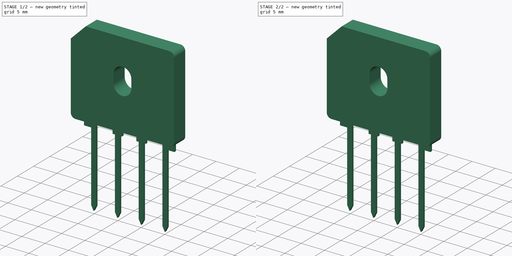
[diagram: build sequence overview — one tinted view per stage of 2, left to right]
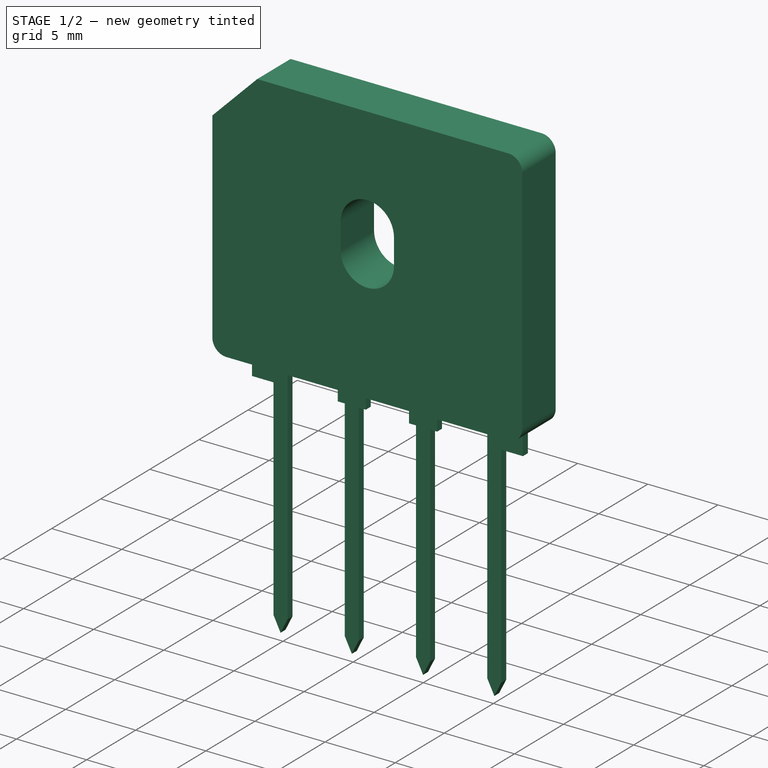
[diagram: stage 1 of 2 — iso view after this stage's code; geometry added in this stage tinted green]
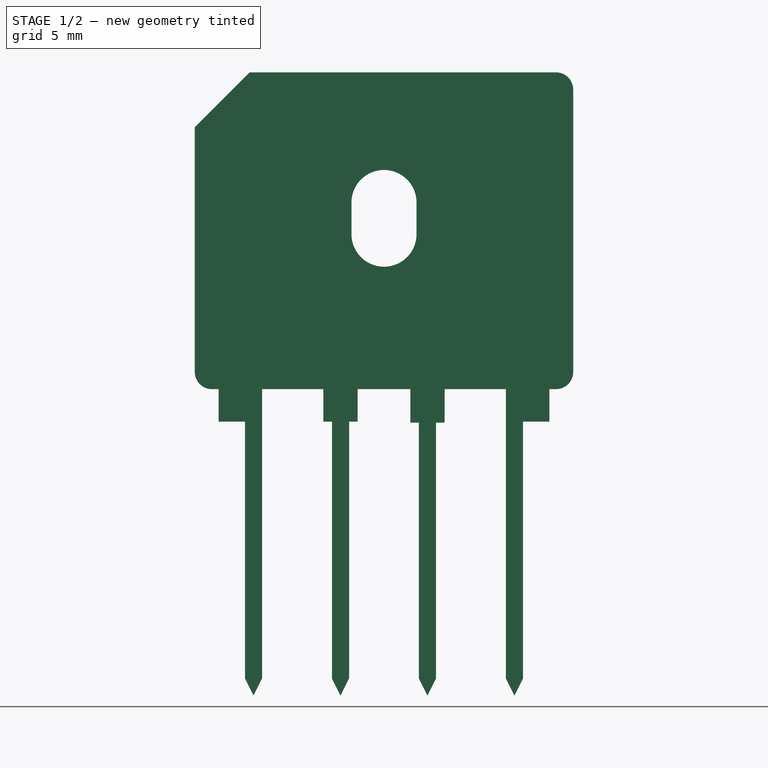
[diagram: stage 1 of 2 — front view after this stage's code; geometry added in this stage tinted green]
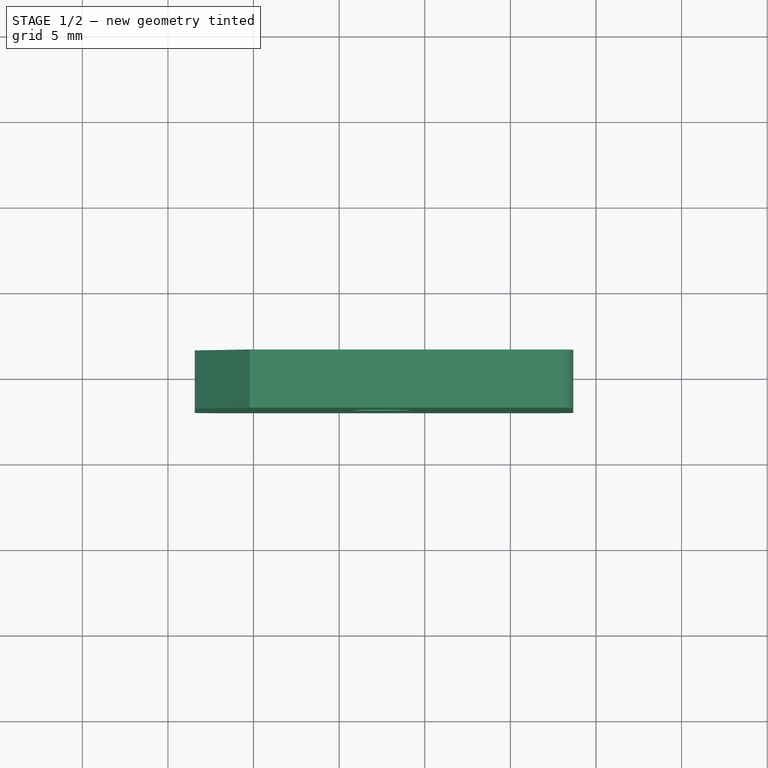
[diagram: stage 1 of 2 — top view after this stage's code; geometry added in this stage tinted green]
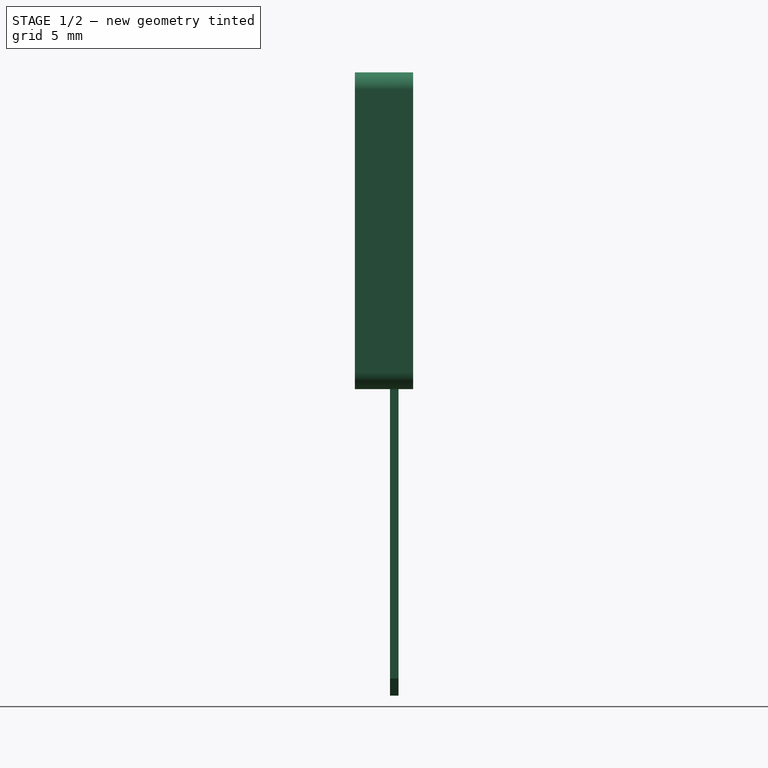
[diagram: stage 1 of 2 — right view after this stage's code; geometry added in this stage tinted green]
FCSTD DOCUMENT  (FreeCAD 0.16R6712 (Git))
Label: Diode_Bridge_Vishay_GBU
License: All rights reserved
LicenseURL: http://en.wikipedia.org/wiki/All_rights_reserved
objects: Sketcher::SketchObject×2, PartDesign::Pad×2, Part::MultiFuse×1
note: 7 computed .brp shape members not serialized (recipe doc carries the construction recipe); baked Part::Feature solids carry a one-line shape summary decoded from their .brp

FEATURE [Sketcher::SketchObject] Sketch
  Placement = pos=(0,0,0) rot=(1,0,0;1.5708rad)
  expr: Constraints[53] = 3 * 5.08
  sketch-geometry (45):
    g0: LineSegment StartX=-2.04 StartY=2 StartZ=0 EndX=-2.04 EndY=0 EndZ=0
    g1: LineSegment StartX=-2.04 StartY=0 StartZ=0 EndX=-0.5 EndY=0 EndZ=0
    g2: LineSegment StartX=-0.5 StartY=0 StartZ=0 EndX=-0.5 EndY=-15 EndZ=0
    g3: LineSegment StartX=-0.5 StartY=-15 StartZ=0 EndX=0 EndY=-16 EndZ=0
    g4: LineSegment StartX=0 StartY=-16 StartZ=0 EndX=0.5 EndY=-15 EndZ=0
    g5: LineSegment StartX=0.5 StartY=-15 StartZ=0 EndX=0.5 EndY=2 EndZ=0
    g6: LineSegment StartX=0.5 StartY=2 StartZ=0 EndX=-2.04 EndY=2 EndZ=0
    g7: LineSegment [constr] StartX=-0.5 StartY=-15 StartZ=0 EndX=0.5 EndY=-15 EndZ=0
    g8: GeomPoint [constr] X=0 Y=-15 Z=0
    g9: LineSegment StartX=14.74 StartY=2 StartZ=0 EndX=14.74 EndY=-15 EndZ=0
    g10: LineSegment StartX=14.74 StartY=-15 StartZ=0 EndX=15.24 EndY=-16 EndZ=0
    g11: LineSegment StartX=15.24 StartY=-16 StartZ=0 EndX=15.74 EndY=-15 EndZ=0
    g12: LineSegment StartX=15.74 StartY=-15 StartZ=0 EndX=15.74 EndY=0 EndZ=0
    g13: LineSegment [constr] StartX=14.74 StartY=-15 StartZ=0 EndX=15.74 EndY=-15 EndZ=0
    g14: GeomPoint [constr] X=15.24 Y=-15 Z=0
    g15: LineSegment StartX=14.74 StartY=2 StartZ=0 EndX=17.28 EndY=2 EndZ=0
    g16: LineSegment StartX=17.28 StartY=2 StartZ=0 EndX=17.28 EndY=0 EndZ=0
    g17: LineSegment StartX=17.28 StartY=0 StartZ=0 EndX=15.74 EndY=0 EndZ=0
    g18: LineSegment [constr] StartX=15.24 StartY=-15 StartZ=0 EndX=15.24 EndY=-16 EndZ=0
    g19: LineSegment [constr] StartX=0 StartY=-16 StartZ=0 EndX=13.9927 EndY=-16 EndZ=0
    g20: LineSegment [constr] StartX=0.5 StartY=2 StartZ=0 EndX=14.74 EndY=2 EndZ=0
    g21: LineSegment StartX=4.08 StartY=2 StartZ=0 EndX=4.08 EndY=0 EndZ=0
    g22: LineSegment StartX=4.08 StartY=0 StartZ=0 EndX=4.58 EndY=0 EndZ=0
    g23: LineSegment StartX=4.58 StartY=0 StartZ=0 EndX=4.58 EndY=-15 EndZ=0
    g24: LineSegment StartX=4.58 StartY=-15 StartZ=0 EndX=5.08 EndY=-16 EndZ=0
    g25: LineSegment StartX=5.08 StartY=-16 StartZ=0 EndX=5.58 EndY=-15 EndZ=0
    g26: LineSegment StartX=6.08 StartY=2 StartZ=0 EndX=4.08 EndY=2 EndZ=0
    g27: LineSegment [constr] StartX=4.58 StartY=-15 StartZ=0 EndX=5.58 EndY=-15 EndZ=0
    g28: GeomPoint [constr] X=5.08 Y=-15 Z=0
    g29: LineSegment StartX=6.08 StartY=2 StartZ=0 EndX=6.08 EndY=0 EndZ=0
    g30: LineSegment StartX=6.08 StartY=0 StartZ=0 EndX=5.58 EndY=0 EndZ=0
    g31: LineSegment StartX=5.58 StartY=0 StartZ=0 EndX=5.58 EndY=-15 EndZ=0
    g32: LineSegment [constr] StartX=5.08 StartY=-15 StartZ=0 EndX=5.08 EndY=-16 EndZ=0
    g33: LineSegment StartX=9.16 StartY=2 StartZ=0 EndX=9.16 EndY=-0.056881 EndZ=0
    g34: LineSegment StartX=9.16 StartY=-0.056881 StartZ=0 EndX=9.66 EndY=-0.056881 EndZ=0
    g35: LineSegment StartX=9.66 StartY=-0.056881 StartZ=0 EndX=9.66 EndY=-15 EndZ=0
    g36: LineSegment StartX=9.66 StartY=-15 StartZ=0 EndX=10.16 EndY=-16 EndZ=0
    g37: LineSegment StartX=10.16 StartY=-16 StartZ=0 EndX=10.66 EndY=-15 EndZ=0
    g38: LineSegment StartX=11.16 StartY=2 StartZ=0 EndX=9.16 EndY=2 EndZ=0
    g39: LineSegment [constr] StartX=9.66 StartY=-15 StartZ=0 EndX=10.66 EndY=-15 EndZ=0
    g40: GeomPoint [constr] X=10.16 Y=-15 Z=0
    g41: LineSegment StartX=11.16 StartY=2 StartZ=0 EndX=11.16 EndY=-0.056881 EndZ=0
    g42: LineSegment StartX=11.16 StartY=-0.056881 StartZ=0 EndX=10.66 EndY=-0.056881 EndZ=0
    g43: LineSegment StartX=10.66 StartY=-0.056881 StartZ=0 EndX=10.66 EndY=-15 EndZ=0
    g44: LineSegment [constr] StartX=10.16 StartY=-15 StartZ=0 EndX=10.16 EndY=-16 EndZ=0
  constraints (120):
    c: PointOnObject(g0,g-1)
    c: Coincident(g1,g0)
    c: Coincident(g2,g1)
    c: Vertical(g2)
    c: Vertical(g5)
    c: Horizontal(g6)
    c: Vertical(g0)
    c: Coincident(g7,g2)
    c: Horizontal(g7)
    c: PointOnObject(g8,g7)
    c: PointOnObject(g8,g-2)
    c: Coincident(g4,g5)
    c: Coincident(g4,g7)
    c: Symmetric(g7,g7,g8)
    c: PointOnObject(g3,g-2)
    c: Coincident(g3,g4)
    c: Horizontal(g1)
    c: Coincident(g0,g6)
    c: Coincident(g5,g6)
    c: DistanceX(g6,g6) = 2.54
    c: Coincident(g2,g3)
    c: DistanceX(g2,g4) = 1
    c: DistanceY(g3,g4) = 1
    c: DistanceY(g3,g5) = 18
    c: DistanceY(g0,g0) = 2
    c: Vertical(g9)
    c: Vertical(g12)
    c: Coincident(g13,g9)
    c: Horizontal(g13)
    c: PointOnObject(g14,g13)
    c: Coincident(g11,g12)
    c: Coincident(g11,g13)
    c: Symmetric(g13,g13,g14)
    c: Coincident(g10,g11)
    c: Coincident(g9,g10)
    c: DistanceX(g9,g11) = 1
    c: DistanceY(g10,g11) = 1
    c: Coincident(g15,g9)
    c: Horizontal(g15)
    c: Vertical(g16)
    c: Coincident(g17,g16)
    c: Coincident(g17,g12)
    c: Horizontal(g17)
    c: Coincident(g15,g16)
    c: PointOnObject(g16,g-1)
    c: Coincident(g18,g14)
    c: Coincident(g18,g10)
    c: Vertical(g18)
    c: Coincident(g19,g3)
    c: Horizontal(g19)
    c: PointOnObject(g10,g19)
    c: Equal(g15,g6)
    c: Equal(g1,g17)
    c: DistanceX(g3,g10) = 15.24
    c: Coincident(g20,g5)
    c: Coincident(g20,g9)
    c: Horizontal(g20)
    c: Coincident(g22,g21)
    c: Coincident(g23,g22)
    c: Vertical(g23)
    c: Horizontal(g26)
    c: Vertical(g21)
    c: Coincident(g27,g23)
    c: Horizontal(g27)
    c: PointOnObject(g28,g27)
    c: Coincident(g25,g27)
    c: Symmetric(g27,g27,g28)
    c: Coincident(g24,g25)
    c: Horizontal(g22)
    c: Coincident(g21,g26)
    c: Coincident(g23,g24)
    c: DistanceX(g23,g25) = 1
    c: DistanceY(g24,g25) = 1
    c: Equal(g0,g21) = 2
    c: Coincident(g29,g26)
    c: PointOnObject(g29,g-1)
    c: Vertical(g29)
    c: Coincident(g30,g29)
    c: PointOnObject(g30,g-1)
    c: Coincident(g31,g30)
    c: Coincident(g31,g25)
    c: Vertical(g31)
    c: Equal(g30,g22)
    c: PointOnObject(g24,g19)
    c: Coincident(g32,g28)
    c: Coincident(g32,g24)
    c: Vertical(g32)
    c: DistanceX(g3,g24) = 5.08
    c: DistanceX(g21,g26) = 2
    c: Coincident(g34,g33)
    c: Coincident(g35,g34)
    c: Vertical(g35)
    c: Horizontal(g38)
    c: Vertical(g33)
    c: Coincident(g39,g35)
    c: Horizontal(g39)
    c: PointOnObject(g40,g39)
    c: Coincident(g37,g39)
    c: Symmetric(g39,g39,g40)
    c: Coincident(g36,g37)
    c: Horizontal(g34)
    c: Coincident(g33,g38)
    c: Coincident(g35,g36)
    c: DistanceX(g35,g37) = 1
    c: DistanceY(g36,g37) = 1
    c: Coincident(g41,g38)
    c: Vertical(g41)
    c: Coincident(g42,g41)
    c: Coincident(g43,g42)
    c: Coincident(g43,g37)
    c: Vertical(g43)
    c: Equal(g42,g34)
    c: Coincident(g44,g40)
    c: Coincident(g44,g36)
    c: Vertical(g44)
    c: DistanceX(g33,g38) = 2
    c: PointOnObject(g36,g19)
    c: DistanceX(g24,g36) = 5.08
    c: PointOnObject(g38,g20)
    c: PointOnObject(g26,g20)
FEATURE [PartDesign::Pad] Pad
  Length = 0.5
  Length2 = 100
  Midplane = true
  Placement = pos=(0,0,0) rot=(1,0,0;1.5708rad)
  Sketch = -> Sketch
  Type = 0
FEATURE [Sketcher::SketchObject] Sketch001
  Placement = pos=(15.24,0,0) rot=(0,0.707107,0.707107;3.14159rad)
  expr: Constraints[30] = 22.1 / 2
  sketch-geometry (12):
    g0: LineSegment StartX=-2.43 StartY=1.9 StartZ=0 EndX=17.67 EndY=1.9 EndZ=0
    g1: LineSegment StartX=18.67 StartY=2.9 StartZ=0 EndX=18.67 EndY=17.2 EndZ=0
    g2: LineSegment StartX=18.67 StartY=17.2 StartZ=0 EndX=15.47 EndY=20.4 EndZ=0
    g3: LineSegment StartX=15.47 StartY=20.4 StartZ=0 EndX=-2.43 EndY=20.4 EndZ=0
    g4: LineSegment StartX=-3.43 StartY=19.4 StartZ=0 EndX=-3.43 EndY=2.9 EndZ=0
    g5: ArcOfCircle CenterX=-2.43 CenterY=2.9 CenterZ=0 NormalX=0 NormalY=0 NormalZ=1 Radius=1 StartAngle=3.14159 EndAngle=4.71239
    g6: ArcOfCircle CenterX=17.67 CenterY=2.9 CenterZ=0 NormalX=0 NormalY=0 NormalZ=1 Radius=1 StartAngle=4.71239 EndAngle=6.28319
    g7: ArcOfCircle CenterX=-2.43 CenterY=19.4 CenterZ=0 NormalX=0 NormalY=0 NormalZ=1 Radius=1 StartAngle=1.5708 EndAngle=3.14159
    g8: ArcOfCircle CenterX=7.62 CenterY=12.8 CenterZ=0 NormalX=0 NormalY=0 NormalZ=1 Radius=1.9 StartAngle=0 EndAngle=3.14159
    g9: ArcOfCircle CenterX=7.62 CenterY=10.95 CenterZ=0 NormalX=0 NormalY=0 NormalZ=1 Radius=1.9 StartAngle=3.14159 EndAngle=6.28319
    g10: LineSegment StartX=5.72 StartY=12.8 StartZ=0 EndX=5.72 EndY=10.95 EndZ=0
    g11: LineSegment StartX=9.52 StartY=12.8 StartZ=0 EndX=9.52 EndY=10.95 EndZ=0
  constraints (31):
    c: Horizontal(g0)
    c: Vertical(g1)
    c: Coincident(g3,g2)
    c: Horizontal(g3)
    c: Vertical(g4)
    c: Coincident(g1,g2)
    c: Angle(g2,g1) = 2.35619
    c: DistanceY(g1,g2) = 3.2
    c: Tangent(g4,g5) = -1.5708
    c: Tangent(g0,g5) = -1.5708
    c: Tangent(g0,g6) = -1.5708
    c: Tangent(g1,g6) = -1.5708
    c: Tangent(g4,g7) = -1.5708
    c: Tangent(g3,g7) = -1.5708
    c: DistanceY(g0,g3) = 18.5
    c: DistanceX(g4,g1) = 22.1
    c: DistanceX(g4,g-1) = 3.43
    c: Equal(g6,g5)
    c: Equal(g5,g7)
    c: DistanceY(g-1,g0) = 1.9
    c: Radius(g6) = 1
    c: Tangent(g8,g11) = 1.5708
    c: Tangent(g8,g10) = -1.5708
    c: Tangent(g10,g9) = -1.5708
    c: Tangent(g11,g9) = 1.5708
    c: Vertical(g10)
    c: Equal(g8,g9)
    c: DistanceY(g8,g3) = 7.6
    c: DistanceY(g9,g8) = 1.85
    c: Radius(g9) = 1.9
    c: DistanceX(g4,g9) = 11.05
FEATURE [PartDesign::Pad] Pad001
  Length = 1.1
  Length2 = 2.3
  Placement = pos=(15.24,0,0) rot=(0,0.707107,0.707107;3.14159rad)
  Sketch = -> Sketch001
  Type = 4
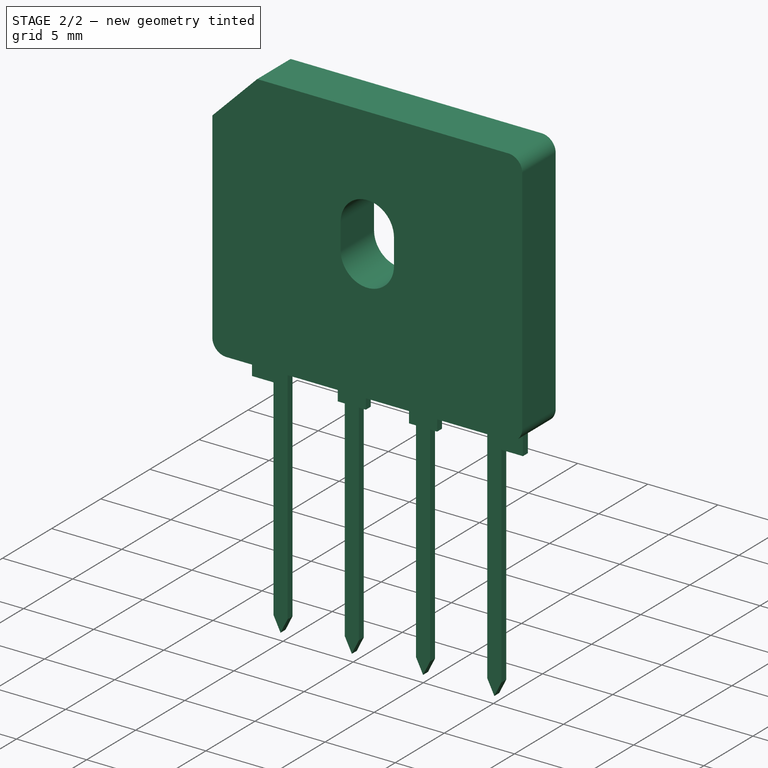
[diagram: stage 2 of 2 — iso view after this stage's code; geometry added in this stage tinted green]
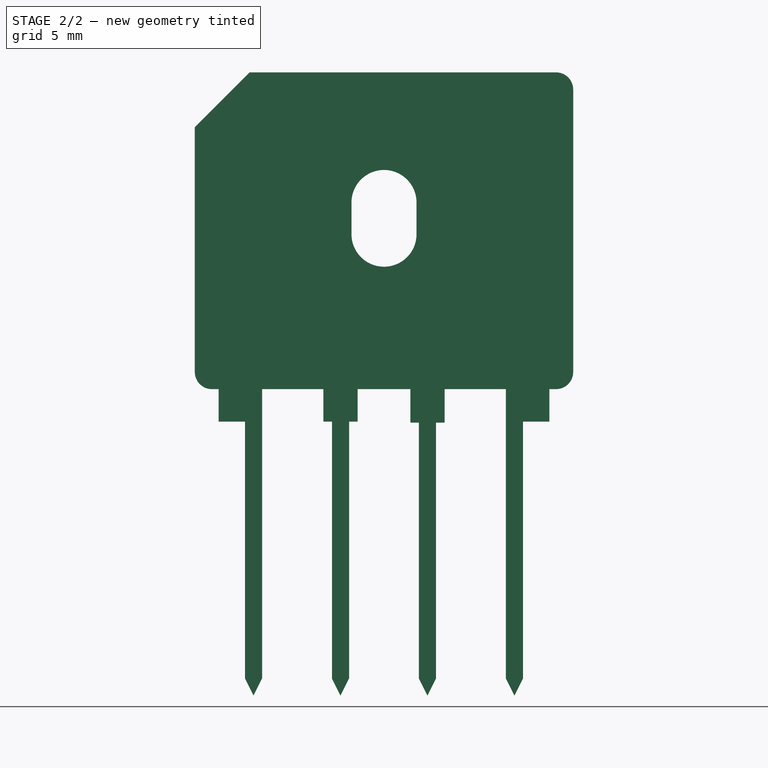
[diagram: stage 2 of 2 — front view after this stage's code; geometry added in this stage tinted green]
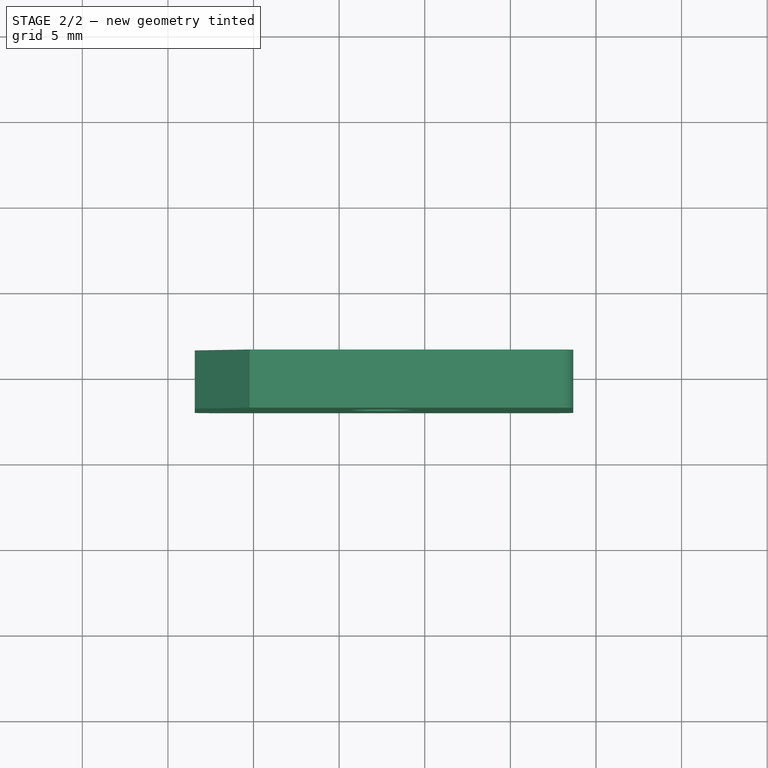
[diagram: stage 2 of 2 — top view after this stage's code; geometry added in this stage tinted green]
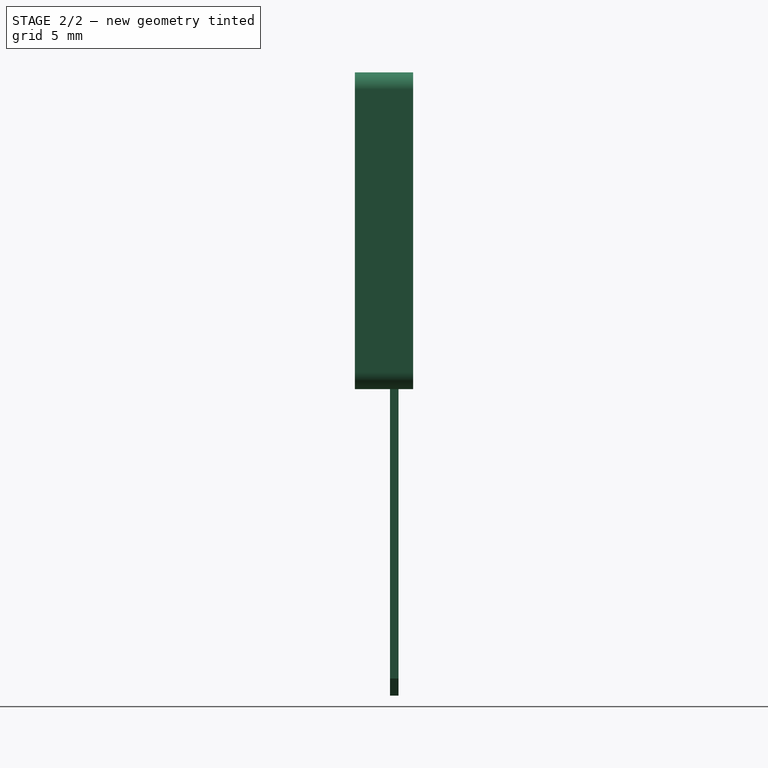
[diagram: stage 2 of 2 — right view after this stage's code; geometry added in this stage tinted green]
FEATURE [Part::MultiFuse] Pad001_mp_cp  label="Diode_Bridge_Vishay_GBU"
  Shapes = -> [Pad001,Pad]
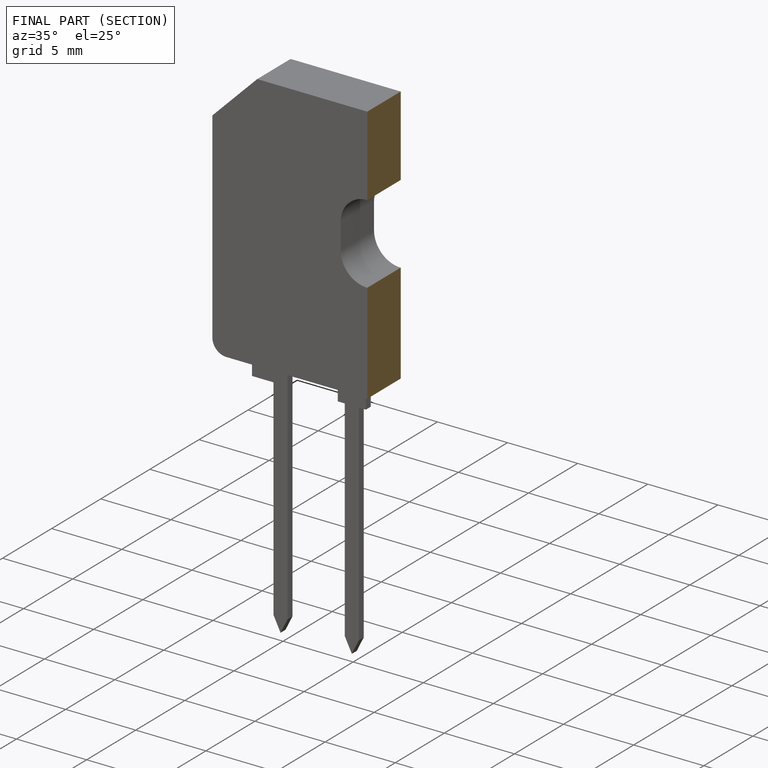
[diagram: finished part — half-section view (interior)]
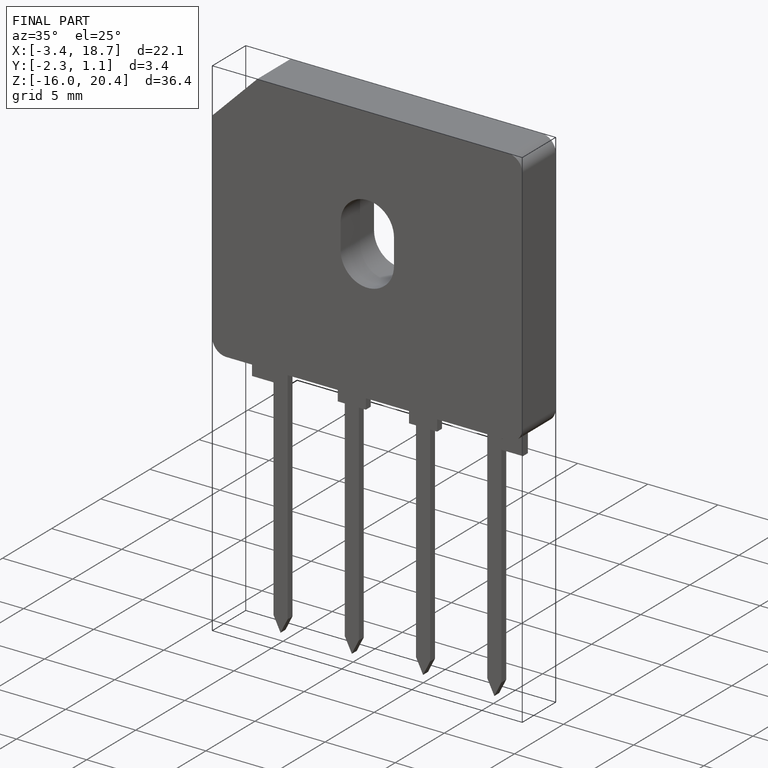
[diagram: finished part — iso view with bounding-box wireframe]
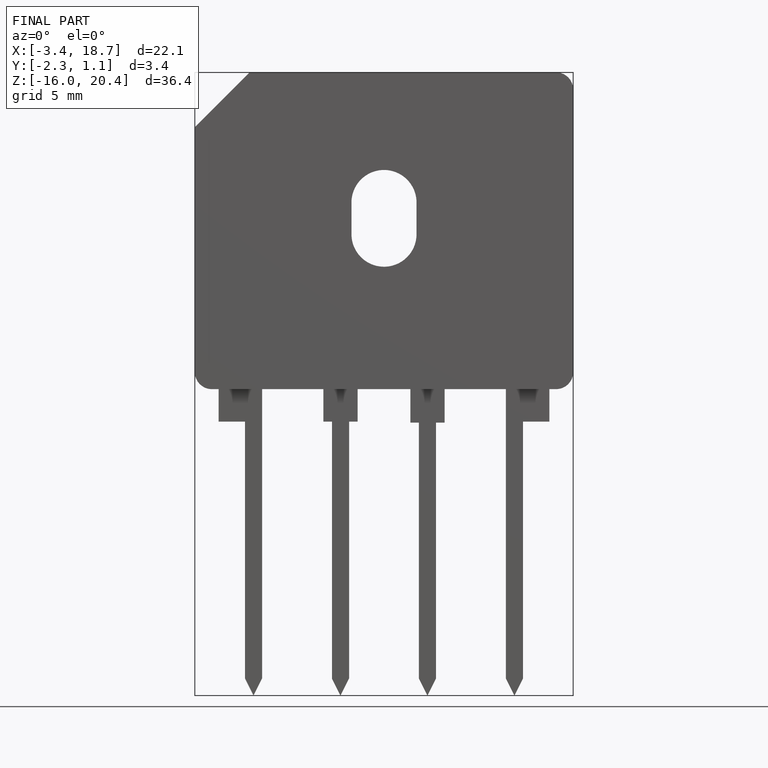
[diagram: finished part — front view with bounding-box wireframe]
